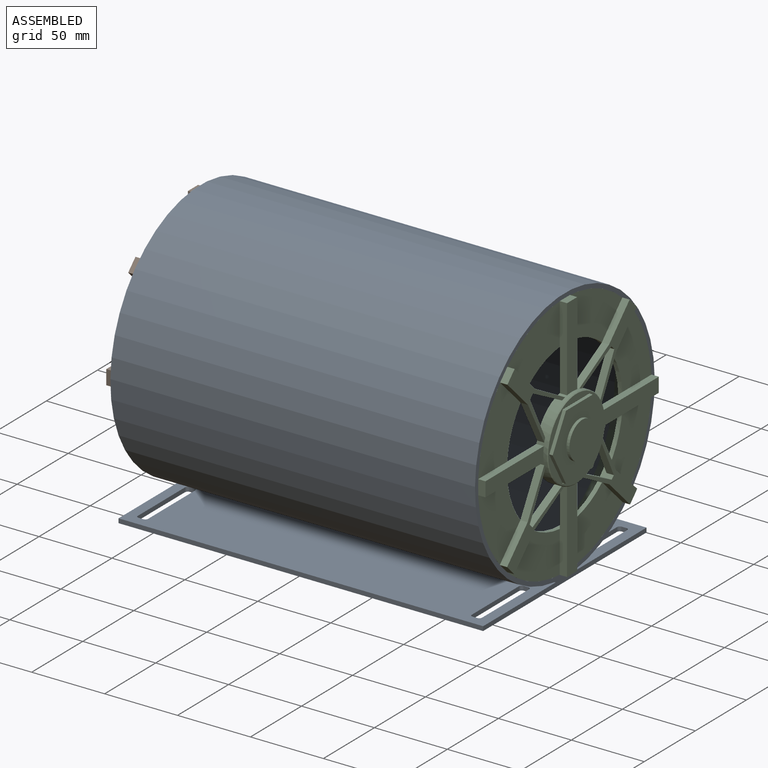
[diagram: assembled view]
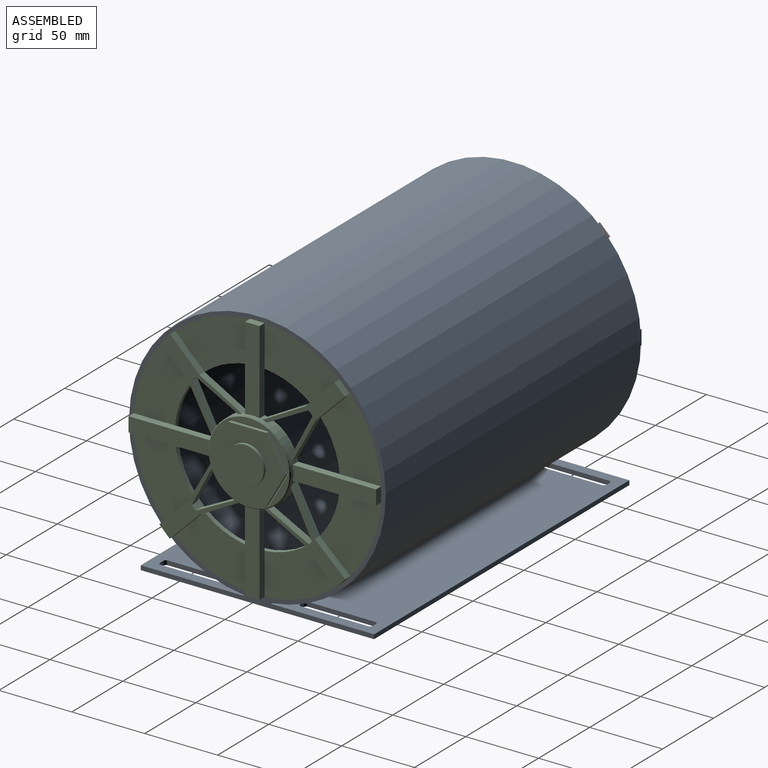
[diagram: assembled view, second angle]
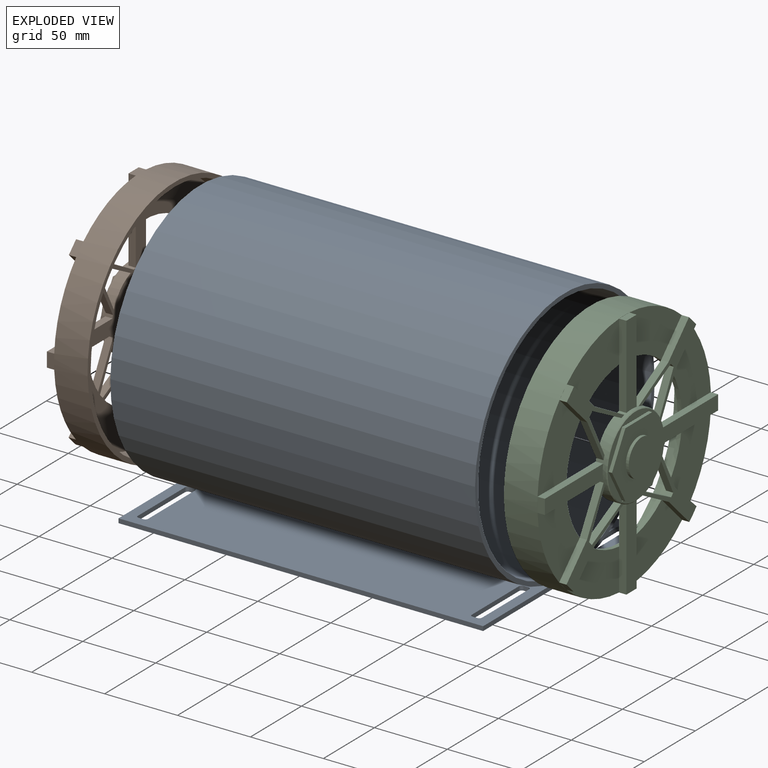
[diagram: exploded view]
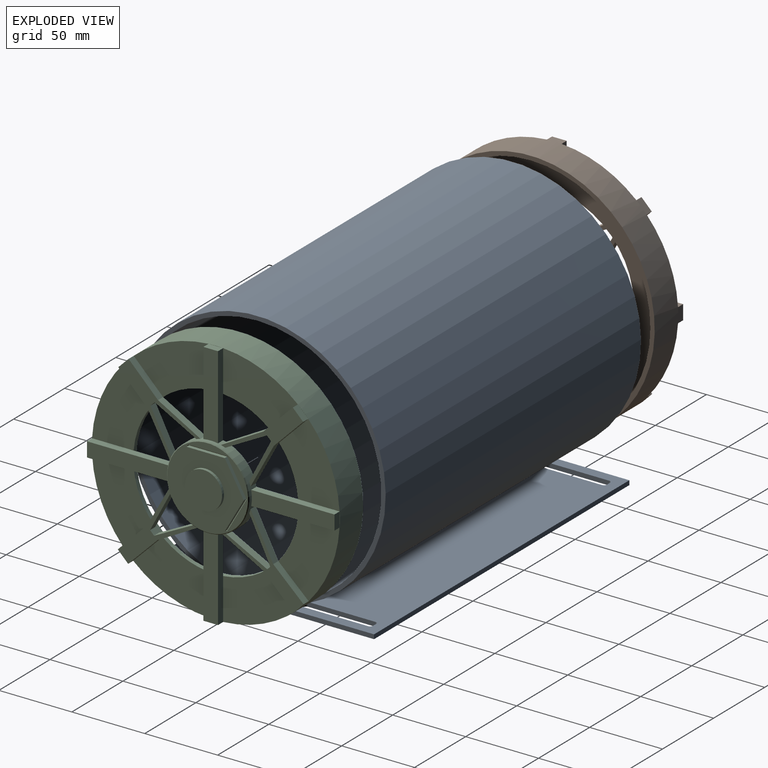
[diagram: exploded view, second angle]
ASSEMBLY  parts=3 mates=2
PART A: 43 faces, bbox 250x176x179 mm
  f0: plane 250x160mm, normal (0,0,-1), area 38613.7mm2, adj f3,f4,f9,f10,f11,f12,f13,f14
  f1: plane 250x70.79mm, normal (0,0,1), area 17003.7mm2, adj f3,f7,f9,f10,f19,f20,f21,f22
  f2: plane 250x70.79mm, normal (0,0,1), area 17004.4mm2, adj f4,f5,f9,f10,f11,f12,f13,f14
  f3: plane 250x3mm, normal (0,-1,0), area 750mm2, adj f0,f1,f9,f10
  f4: plane 250x3mm, normal (0,1,0), area 750mm2, adj f0,f2,f9,f10
  f5: plane 250x0.48mm, normal (0,1,0), area 120.8mm2, adj f2,f6,f9,f10
  f6: cylinder r=88mm len=250mm, axis (-1,0,0), area 133616mm2, adj f5,f7,f9,f10
  f7: plane 250x0.48mm, normal (0,-1,0), area 120.9mm2, adj f1,f6,f9,f10
  f8: cylinder r=85mm len=250mm, axis (-1,0,0), area 133517.7mm2, adj f9,f10
  f9: plane 179x176mm, normal (1,0,0), area 2113.5mm2, adj f0,f1,f2,f3,f4,f5,f6,f7
  f10: plane 179x176mm, normal (-1,0,0), area 2113.5mm2, adj f0,f1,f2,f3,f4,f5,f6,f7
  f11: plane 3x3mm, normal (0,1,0), area 9mm2, adj f0,f2,f12,f18
  f12: cylinder r=2mm len=3mm, axis (0,0,-1), area 9.4mm2, adj f0,f2,f11,f13
  f13: plane 46x3mm, normal (1,0,0), area 138mm2, adj f0,f2,f12,f14
  f14: cylinder r=2mm len=3mm, axis (0,0,-1), area 9.4mm2, adj f0,f2,f13,f15
  f15: plane 3x3mm, normal (0,-1,0), area 9mm2, adj f0,f2,f14,f16
  f16: cylinder r=2mm len=3mm, axis (0,0,-1), area 9.4mm2, adj f0,f2,f15,f17
  f17: plane 46x3mm, normal (-1,0,0), area 138mm2, adj f0,f2,f16,f18
  f18: cylinder r=2mm len=3mm, axis (0,0,-1), area 9.4mm2, adj f0,f2,f11,f17
  f19: plane 46x3mm, normal (-1,0,0), area 138mm2, adj f0,f1,f20,f26
  f20: cylinder r=2mm len=3mm, axis (0,0,-1), area 9.4mm2, adj f0,f1,f19,f21
  f21: plane 3x3mm, normal (0,1,0), area 9mm2, adj f0,f1,f20,f22
  f22: cylinder r=2mm len=3mm, axis (0,0,-1), area 9.4mm2, adj f0,f1,f21,f23
  f23: plane 46x3mm, normal (1,0,0), area 138mm2, adj f0,f1,f22,f24
  f24: cylinder r=2mm len=3mm, axis (0,0,-1), area 9.4mm2, adj f0,f1,f23,f25
  f25: plane 3x3mm, normal (0,-1,0), area 9mm2, adj f0,f1,f24,f26
  f26: cylinder r=2mm len=3mm, axis (0,0,-1), area 9.4mm2, adj f0,f1,f19,f25
  f27: plane 3x3mm, normal (0,1,0), area 9mm2, adj f0,f2,f28,f34
  f28: cylinder r=2mm len=3mm, axis (0,0,-1), area 9.4mm2, adj f0,f2,f27,f29
  f29: plane 46x3mm, normal (1,0,0), area 138mm2, adj f0,f2,f28,f30
  f30: cylinder r=2mm len=3mm, axis (0,0,-1), area 9.4mm2, adj f0,f2,f29,f31
  f31: plane 3x3mm, normal (0,-1,0), area 9mm2, adj f0,f2,f30,f32
  f32: cylinder r=2mm len=3mm, axis (0,0,-1), area 9.4mm2, adj f0,f2,f31,f33
  f33: plane 46x3mm, normal (-1,0,0), area 138mm2, adj f0,f2,f32,f34
  f34: cylinder r=2mm len=3mm, axis (0,0,-1), area 9.4mm2, adj f0,f2,f27,f33
  f35: plane 3x3mm, normal (0,1,0), area 9mm2, adj f0,f1,f36,f42
  f36: cylinder r=2mm len=3mm, axis (0,0,-1), area 9.4mm2, adj f0,f1,f35,f37
  f37: plane 46x3mm, normal (1,0,0), area 138mm2, adj f0,f1,f36,f38
  f38: cylinder r=2mm len=3mm, axis (0,0,-1), area 9.4mm2, adj f0,f1,f37,f39
  f39: plane 3x3mm, normal (0,-1,0), area 9mm2, adj f0,f1,f38,f40
  f40: cylinder r=2mm len=3mm, axis (0,0,-1), area 9.4mm2, adj f0,f1,f39,f41
  f41: plane 46x3mm, normal (-1,0,0), area 138mm2, adj f0,f1,f40,f42
  f42: cylinder r=2mm len=3mm, axis (0,0,-1), area 9.4mm2, adj f0,f1,f35,f41
PART B: 89 faces, bbox 33x170x170 mm
  f0: plane 56.69x56.38mm, normal (1,0,0), area 448mm2, adj f27,f32,f33,f57,f58,f59,f60,f61
  f1: plane 57.09x10mm, normal (1,0,0), area 567.9mm2, adj f33,f62,f63,f64
  f2: plane 56.69x56.38mm, normal (1,0,0), area 446.4mm2, adj f24,f27,f30,f31,f33,f36,f37,f65
  f3: plane 57.09x10mm, normal (1,0,0), area 567.9mm2, adj f33,f38,f39,f40
  f4: plane 56.69x56.38mm, normal (1,0,0), area 450.4mm2, adj f27,f33,f35,f41,f42,f43,f44,f45
  f5: plane 57.09x10mm, normal (1,0,0), area 567.9mm2, adj f33,f46,f47,f48
  f6: plane 57.09x10mm, normal (1,0,0), area 567.9mm2, adj f54,f55,f56,f71
  f7: plane 56.69x56.38mm, normal (1,0,0), area 431.5mm2, adj f24,f27,f33,f34,f49,f50,f51,f52
  f8: plane 51.64x41.6mm, normal (1,0,0), area 1301.5mm2, adj f24,f27,f36,f38
  f9: plane 51.29x41.3mm, normal (1,0,0), area 1288.4mm2, adj f24,f27,f64,f66
  f10: plane 10x0.15mm, normal (1,0,0), area 1mm2, adj f24,f63
  f11: plane 51.29x41.35mm, normal (1,0,0), area 1289.5mm2, adj f24,f27,f60,f62
  f12: plane 7.09x7.05mm, normal (1,0,0), area 1mm2, adj f24,f59
  f13: plane 51.64x41.55mm, normal (1,0,0), area 1300.4mm2, adj f24,f27,f56,f58
  f14: plane 10x0.15mm, normal (1,0,0), area 1mm2, adj f24,f55
  f15: plane 51.3x42mm, normal (1,0,0), area 1303.7mm2, adj f24,f27,f52,f54
  f16: plane 3.01x2.79mm, normal (1,0,0), area 0.1mm2, adj f24,f51
  f17: plane 51.64x41.6mm, normal (1,0,0), area 1301.6mm2, adj f24,f27,f48,f50
  f18: plane 10x0.15mm, normal (1,0,0), area 1mm2, adj f24,f47
  f19: plane 51.64x41.55mm, normal (1,0,0), area 1300.4mm2, adj f24,f27,f44,f46
  f20: plane 7.09x7.05mm, normal (1,0,0), area 1mm2, adj f24,f43
  f21: plane 51.29x41.3mm, normal (1,0,0), area 1288.4mm2, adj f24,f27,f40,f42
  f22: plane 10x0.15mm, normal (1,0,0), area 1mm2, adj f24,f39
  f23: cylinder r=82mm len=164mm, axis (-1,0,0), area 10304.4mm2, adj f25,f26
  f24: cylinder r=85mm len=170mm, axis (-1,0,0), area 12315.4mm2, adj f2,f7,f8,f9,f10,f11,f12,f13
  f25: plane 170x170mm, normal (-1,0,0), area 1573.9mm2, adj f23,f24
  f26: plane 164x164mm, normal (-1,0,0), area 11059.8mm2, adj f23,f27
  f27: cylinder r=56.6mm len=113.2mm, axis (-1,0,0), area 1141.2mm2, adj f0,f2,f4,f7,f8,f9,f11,f13
  f28: plane 6.75x6.75mm, normal (1,0,0), area 0.9mm2, adj f24,f70
  f29: plane 113.2x113.2mm, normal (-1,0,0), area 3788.6mm2, adj f27,f30,f31,f32,f33,f34,f35,f37
  f30: plane 28.88x14.83mm, normal (0,0.89,0.46), area 162.3mm2, adj f2,f27,f29,f33
  f31: plane 28.55x15.14mm, normal (0,-0.47,-0.88), area 161.6mm2, adj f2,f27,f29,f33
  f32: plane 28.83x14.88mm, normal (0,-0.89,0.46), area 162.2mm2, adj f0,f27,f29,f33
  f33: cylinder r=28.21mm len=56.42mm, axis (-1,0,0), area 982.5mm2, adj f0,f1,f2,f3,f4,f5,f7,f29
  f34: plane 28.89x14.82mm, normal (0,0.46,0.89), area 162.3mm2, adj f7,f27,f29,f33
  f35: plane 28.55x15.14mm, normal (0,0.88,-0.47), area 161.6mm2, adj f4,f27,f29,f33
  f36: plane 20.13x20.13mm, normal (0,-0.71,-0.71), area 142.3mm2, adj f2,f8,f37,f70
  f37: plane 29.51x15.92mm, normal (0,-0.88,-0.47), area 167.6mm2, adj f2,f29,f33,f36
  f38: plane 57.09x5mm, normal (0,0,1), area 285.4mm2, adj f3,f8,f29,f33,f39
  f39: plane 10x5mm, normal (0,-1,0), area 50mm2, adj f3,f22,f38,f40
  f40: plane 57.09x5mm, normal (0,0,-1), area 285.4mm2, adj f3,f21,f29,f33,f39
  f41: plane 29.15x16.22mm, normal (0,-0.87,0.49), area 166.8mm2, adj f4,f29,f33,f42
  f42: plane 20.14x20.14mm, normal (0,-0.71,0.71), area 142.4mm2, adj f4,f21,f41,f43
  f43: plane 7.09x7.05mm, normal (0,-0.71,-0.71), area 50mm2, adj f4,f20,f42,f44
  f44: plane 20.19x20.08mm, normal (0,0.71,-0.71), area 142.4mm2, adj f4,f19,f43,f45
  f45: plane 29.45x15.97mm, normal (0,0.48,-0.88), area 167.5mm2, adj f4,f29,f33,f44
  f46: plane 57.09x5mm, normal (0,-1,0), area 285.4mm2, adj f5,f19,f29,f33,f47
  f47: plane 10x5mm, normal (0,0,-1), area 50mm2, adj f5,f18,f46,f48
  f48: plane 57.09x5mm, normal (0,1,0), area 285.4mm2, adj f5,f17,f29,f33,f47
  f49: plane 29.51x15.92mm, normal (0,-0.47,-0.88), area 167.7mm2, adj f7,f29,f33,f50
  f50: plane 20.13x20.13mm, normal (0,-0.71,-0.71), area 142.3mm2, adj f7,f17,f24,f49
  f51: plane 5x3.01mm, normal (0,0.73,-0.68), area 20.5mm2, adj f7,f16,f24,f52
  f52: plane 20.83x19.33mm, normal (0,0.68,0.73), area 142.1mm2, adj f7,f15,f51,f53
  f53: plane 29.97x15.53mm, normal (0,0.89,0.46), area 168.8mm2, adj f7,f29,f33,f52
  f54: plane 57.09x5mm, normal (0,0,-1), area 285.4mm2, adj f6,f15,f29,f33,f55
  f55: plane 10x5mm, normal (0,1,0), area 50mm2, adj f6,f14,f54,f56
  f56: plane 57.09x5mm, normal (0,0,1), area 285.4mm2, adj f6,f13,f29,f33,f55
  f57: plane 29.45x15.97mm, normal (0,0.88,-0.48), area 167.5mm2, adj f0,f29,f33,f58
  f58: plane 20.19x20.08mm, normal (0,0.71,-0.71), area 142.4mm2, adj f0,f13,f57,f59
  f59: plane 7.09x7.05mm, normal (0,0.71,0.71), area 50mm2, adj f0,f12,f58,f60
  f60: plane 20.19x20.08mm, normal (0,-0.71,0.71), area 142.4mm2, adj f0,f11,f59,f61
  f61: plane 29.21x16.17mm, normal (0,-0.48,0.87), area 166.9mm2, adj f0,f29,f33,f60
  f62: plane 57.09x5mm, normal (0,1,0), area 285.4mm2, adj f1,f11,f29,f33,f63
  f63: plane 10x5mm, normal (0,0,1), area 50mm2, adj f1,f10,f62,f64
  f64: plane 57.09x5mm, normal (0,-1,0), area 285.4mm2, adj f1,f9,f29,f33,f63
  f65: plane 29.15x16.22mm, normal (0,0.49,0.87), area 166.8mm2, adj f2,f29,f33,f66
  f66: plane 20.14x20.14mm, normal (0,0.71,0.71), area 142.4mm2, adj f2,f9,f24,f65
  f67: plane 28.47x15.14mm, normal (0,0.47,-0.88), area 161.2mm2, adj f0,f27,f29,f33
  f68: plane 29.33x14.41mm, normal (0,-0.9,-0.44), area 163.4mm2, adj f7,f27,f29,f33
  f69: plane 28.97x14.75mm, normal (0,-0.45,0.89), area 162.5mm2, adj f4,f27,f29,f33
  f70: plane 6.75x6.75mm, normal (0,-0.71,0.71), area 47.7mm2, adj f2,f24,f28,f36
  f71: extruded ~10x2.5mm, area 25.1mm2, adj f6,f33,f73
  f72: plane 55.43x55.43mm, normal (1,0,0), area 548mm2, adj f73,f74,f75,f76,f77,f78,f79,f80
  f73: bspline ~10x1.09mm, area 7mm2, adj f71,f72,f74
  f74: cone r=27.71mm half-angle=45deg, axis (-1,0,0), area 117.2mm2, adj f33,f72,f73
  f75: plane 26.79x0.5mm, normal (0.71,0,0.71), area 18.7mm2, adj f72,f76,f77,f81
  f76: plane 23.2x13.68mm, normal (0.71,-0.61,0.35), area 18.7mm2, adj f72,f75,f78,f82
  f77: plane 23.2x13.68mm, normal (0.71,0.61,0.35), area 18.7mm2, adj f72,f75,f79,f85
  f78: plane 23.2x13.68mm, normal (0.71,-0.61,-0.35), area 18.7mm2, adj f72,f76,f80,f86
  f79: plane 23.2x13.68mm, normal (0.71,0.61,-0.35), area 18.7mm2, adj f72,f77,f80,f83
  f80: plane 26.79x0.5mm, normal (0.71,0,-0.71), area 18.7mm2, adj f72,f78,f79,f84
  f81: plane 26.21x2.5mm, normal (0,0,-1), area 65.5mm2, adj f75,f82,f85,f87
  f82: plane 22.7x13.11mm, normal (0,0.87,-0.5), area 65.5mm2, adj f76,f81,f86,f87
  f83: plane 22.7x13.11mm, normal (0,-0.87,0.5), area 65.5mm2, adj f79,f84,f85,f87
  f84: plane 26.21x2.5mm, normal (0,0,1), area 65.5mm2, adj f80,f83,f86,f87
  f85: plane 22.7x13.11mm, normal (0,-0.87,-0.5), area 65.5mm2, adj f77,f81,f83,f87
  f86: plane 22.7x13.11mm, normal (0,0.87,0.5), area 65.5mm2, adj f78,f82,f84,f87
  f87: plane 52.42x45.4mm, normal (1,0,0), area 1278.3mm2, adj f81,f82,f83,f84,f85,f86,f88
  f88: cylinder r=12.7mm len=25.4mm, axis (1,0,0), area 798mm2, adj f29,f87
PART C: 90 faces, bbox 35x170x170 mm
  f0: plane 56.69x56.38mm, normal (1,0,0), area 448mm2, adj f27,f32,f33,f57,f58,f59,f60,f61
  f1: plane 57.09x10mm, normal (1,0,0), area 567.9mm2, adj f33,f62,f63,f64
  f2: plane 56.69x56.38mm, normal (1,0,0), area 446.4mm2, adj f24,f27,f30,f31,f33,f36,f37,f65
  f3: plane 57.09x10mm, normal (1,0,0), area 567.9mm2, adj f33,f38,f39,f40
  f4: plane 56.69x56.38mm, normal (1,0,0), area 450.4mm2, adj f27,f33,f35,f41,f42,f43,f44,f45
  f5: plane 57.09x10mm, normal (1,0,0), area 567.9mm2, adj f33,f46,f47,f48
  f6: plane 57.09x10mm, normal (1,0,0), area 567.9mm2, adj f54,f55,f56,f71
  f7: plane 56.69x56.38mm, normal (1,0,0), area 431.5mm2, adj f24,f27,f33,f34,f49,f50,f51,f52
  f8: plane 51.64x41.6mm, normal (1,0,0), area 1301.5mm2, adj f24,f27,f36,f38
  f9: plane 51.29x41.3mm, normal (1,0,0), area 1288.4mm2, adj f24,f27,f64,f66
  f10: plane 10x0.15mm, normal (1,0,0), area 1mm2, adj f24,f63
  f11: plane 51.29x41.35mm, normal (1,0,0), area 1289.5mm2, adj f24,f27,f60,f62
  f12: plane 7.09x7.05mm, normal (1,0,0), area 1mm2, adj f24,f59
  f13: plane 51.64x41.55mm, normal (1,0,0), area 1300.4mm2, adj f24,f27,f56,f58
  f14: plane 10x0.15mm, normal (1,0,0), area 1mm2, adj f24,f55
  f15: plane 51.3x42mm, normal (1,0,0), area 1303.7mm2, adj f24,f27,f52,f54
  f16: plane 3.01x2.79mm, normal (1,0,0), area 0.1mm2, adj f24,f51
  f17: plane 51.64x41.6mm, normal (1,0,0), area 1301.6mm2, adj f24,f27,f48,f50
  f18: plane 10x0.15mm, normal (1,0,0), area 1mm2, adj f24,f47
  f19: plane 51.64x41.55mm, normal (1,0,0), area 1300.4mm2, adj f24,f27,f44,f46
  f20: plane 7.09x7.05mm, normal (1,0,0), area 1mm2, adj f24,f43
  f21: plane 51.29x41.3mm, normal (1,0,0), area 1288.4mm2, adj f24,f27,f40,f42
  f22: plane 10x0.15mm, normal (1,0,0), area 1mm2, adj f24,f39
  f23: cylinder r=82mm len=164mm, axis (-1,0,0), area 10304.4mm2, adj f25,f26
  f24: cylinder r=85mm len=170mm, axis (-1,0,0), area 12315.4mm2, adj f2,f7,f8,f9,f10,f11,f12,f13
  f25: plane 170x170mm, normal (-1,0,0), area 1573.9mm2, adj f23,f24
  f26: plane 164x164mm, normal (-1,0,0), area 11059.8mm2, adj f23,f27
  f27: cylinder r=56.6mm len=113.2mm, axis (-1,0,0), area 1141.2mm2, adj f0,f2,f4,f7,f8,f9,f11,f13
  f28: plane 6.75x6.75mm, normal (1,0,0), area 0.9mm2, adj f24,f70
  f29: plane 113.2x113.2mm, normal (-1,0,0), area 4295.3mm2, adj f27,f30,f31,f32,f33,f34,f35,f37
  f30: plane 28.88x14.83mm, normal (0,0.89,0.46), area 162.3mm2, adj f2,f27,f29,f33
  f31: plane 28.55x15.14mm, normal (0,-0.47,-0.88), area 161.6mm2, adj f2,f27,f29,f33
  f32: plane 28.83x14.88mm, normal (0,-0.89,0.46), area 162.2mm2, adj f0,f27,f29,f33
  f33: cylinder r=28.21mm len=56.42mm, axis (-1,0,0), area 982.5mm2, adj f0,f1,f2,f3,f4,f5,f7,f29
  f34: plane 28.89x14.82mm, normal (0,0.46,0.89), area 162.3mm2, adj f7,f27,f29,f33
  f35: plane 28.55x15.14mm, normal (0,0.88,-0.47), area 161.6mm2, adj f4,f27,f29,f33
  f36: plane 20.13x20.13mm, normal (0,-0.71,-0.71), area 142.3mm2, adj f2,f8,f37,f70
  f37: plane 29.51x15.92mm, normal (0,-0.88,-0.47), area 167.6mm2, adj f2,f29,f33,f36
  f38: plane 57.09x5mm, normal (0,0,1), area 285.4mm2, adj f3,f8,f29,f33,f39
  f39: plane 10x5mm, normal (0,-1,0), area 50mm2, adj f3,f22,f38,f40
  f40: plane 57.09x5mm, normal (0,0,-1), area 285.4mm2, adj f3,f21,f29,f33,f39
  f41: plane 29.15x16.22mm, normal (0,-0.87,0.49), area 166.8mm2, adj f4,f29,f33,f42
  f42: plane 20.14x20.14mm, normal (0,-0.71,0.71), area 142.4mm2, adj f4,f21,f41,f43
  f43: plane 7.09x7.05mm, normal (0,-0.71,-0.71), area 50mm2, adj f4,f20,f42,f44
  f44: plane 20.19x20.08mm, normal (0,0.71,-0.71), area 142.4mm2, adj f4,f19,f43,f45
  f45: plane 29.45x15.97mm, normal (0,0.48,-0.88), area 167.5mm2, adj f4,f29,f33,f44
  f46: plane 57.09x5mm, normal (0,-1,0), area 285.4mm2, adj f5,f19,f29,f33,f47
  f47: plane 10x5mm, normal (0,0,-1), area 50mm2, adj f5,f18,f46,f48
  f48: plane 57.09x5mm, normal (0,1,0), area 285.4mm2, adj f5,f17,f29,f33,f47
  f49: plane 29.51x15.92mm, normal (0,-0.47,-0.88), area 167.7mm2, adj f7,f29,f33,f50
  f50: plane 20.13x20.13mm, normal (0,-0.71,-0.71), area 142.3mm2, adj f7,f17,f24,f49
  f51: plane 5x3.01mm, normal (0,0.73,-0.68), area 20.5mm2, adj f7,f16,f24,f52
  f52: plane 20.83x19.33mm, normal (0,0.68,0.73), area 142.1mm2, adj f7,f15,f51,f53
  f53: plane 29.97x15.53mm, normal (0,0.89,0.46), area 168.8mm2, adj f7,f29,f33,f52
  f54: plane 57.09x5mm, normal (0,0,-1), area 285.4mm2, adj f6,f15,f29,f33,f55
  f55: plane 10x5mm, normal (0,1,0), area 50mm2, adj f6,f14,f54,f56
  f56: plane 57.09x5mm, normal (0,0,1), area 285.4mm2, adj f6,f13,f29,f33,f55
  f57: plane 29.45x15.97mm, normal (0,0.88,-0.48), area 167.5mm2, adj f0,f29,f33,f58
  f58: plane 20.19x20.08mm, normal (0,0.71,-0.71), area 142.4mm2, adj f0,f13,f57,f59
  f59: plane 7.09x7.05mm, normal (0,0.71,0.71), area 50mm2, adj f0,f12,f58,f60
  f60: plane 20.19x20.08mm, normal (0,-0.71,0.71), area 142.4mm2, adj f0,f11,f59,f61
  f61: plane 29.21x16.17mm, normal (0,-0.48,0.87), area 166.9mm2, adj f0,f29,f33,f60
  f62: plane 57.09x5mm, normal (0,1,0), area 285.4mm2, adj f1,f11,f29,f33,f63
  f63: plane 10x5mm, normal (0,0,1), area 50mm2, adj f1,f10,f62,f64
  f64: plane 57.09x5mm, normal (0,-1,0), area 285.4mm2, adj f1,f9,f29,f33,f63
  f65: plane 29.15x16.22mm, normal (0,0.49,0.87), area 166.8mm2, adj f2,f29,f33,f66
  f66: plane 20.14x20.14mm, normal (0,0.71,0.71), area 142.4mm2, adj f2,f9,f24,f65
  f67: plane 28.47x15.14mm, normal (0,0.47,-0.88), area 161.2mm2, adj f0,f27,f29,f33
  f68: plane 29.33x14.41mm, normal (0,-0.9,-0.44), area 163.4mm2, adj f7,f27,f29,f33
  f69: plane 28.97x14.75mm, normal (0,-0.45,0.89), area 162.5mm2, adj f4,f27,f29,f33
  f70: plane 6.75x6.75mm, normal (0,-0.71,0.71), area 47.7mm2, adj f2,f24,f28,f36
  f71: extruded ~10x2.5mm, area 25.1mm2, adj f6,f33,f73
  f72: plane 55.43x55.43mm, normal (1,0,0), area 548mm2, adj f73,f74,f75,f76,f77,f78,f79,f80
  f73: bspline ~10x1.09mm, area 7mm2, adj f71,f72,f74
  f74: cone r=27.71mm half-angle=45deg, axis (-1,0,0), area 117.2mm2, adj f33,f72,f73
  f75: plane 26.79x0.5mm, normal (0.71,0,0.71), area 18.7mm2, adj f72,f76,f77,f82
  f76: plane 23.2x13.68mm, normal (0.71,-0.61,0.35), area 18.7mm2, adj f72,f75,f78,f81
  f77: plane 23.2x13.68mm, normal (0.71,0.61,0.35), area 18.7mm2, adj f72,f75,f79,f83
  f78: plane 23.2x13.68mm, normal (0.71,-0.61,-0.35), area 18.7mm2, adj f72,f76,f80,f84
  f79: plane 23.2x13.68mm, normal (0.71,0.61,-0.35), area 18.7mm2, adj f72,f77,f80,f86
  f80: plane 26.79x0.5mm, normal (0.71,0,-0.71), area 18.7mm2, adj f72,f78,f79,f85
  f81: plane 22.7x13.11mm, normal (0,0.87,-0.5), area 65.5mm2, adj f76,f82,f84,f87
  f82: plane 26.21x2.5mm, normal (0,0,-1), area 65.5mm2, adj f75,f81,f83,f87
  f83: plane 22.7x13.11mm, normal (0,-0.87,-0.5), area 65.5mm2, adj f77,f82,f86,f87
  f84: plane 22.7x13.11mm, normal (0,0.87,0.5), area 65.5mm2, adj f78,f81,f85,f87
  f85: plane 26.21x2.5mm, normal (0,0,1), area 65.5mm2, adj f80,f84,f86,f87
  f86: plane 22.7x13.11mm, normal (0,-0.87,0.5), area 65.5mm2, adj f79,f83,f85,f87
  f87: plane 52.42x45.4mm, normal (1,0,0), area 1278.3mm2, adj f81,f82,f83,f84,f85,f86,f88
  f88: cylinder r=12.7mm len=25.4mm, axis (-1,0,0), area 159.6mm2, adj f87,f89
  f89: plane 25.4x25.4mm, normal (1,0,0), area 506.7mm2, adj f88
PLACE A t=(-66.79,10.45,-33.23)mm
PLACE B rot(axis=(0,0,1),180deg) t=(-43.79,10.45,-33.23)mm
PLACE C t=(160.21,10.45,-33.23)mm
MATE fastened B.f33 <-> A.f8  axis (1,0,0) through (-66.79,10.45,-33.23)mm
MATE fastened C.f33 <-> A.f8  axis (-1,0,0) through (183.21,10.45,-33.23)mm
